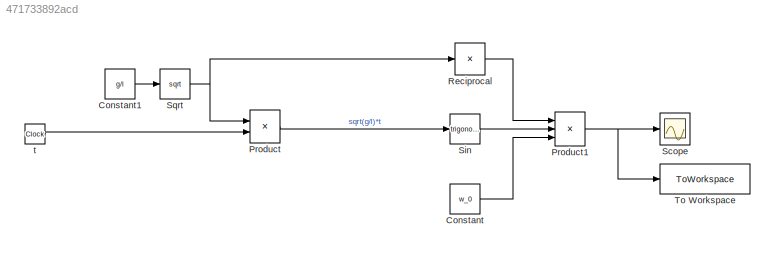
MODEL slx_471733892acd
KIND model
CONFIG AbsTol = auto
CONFIG EnableMultiTasking = off
CONFIG FixedStep = auto
CONFIG MaxStep = auto
CONFIG MinStep = auto
CONFIG RelTol = 1e-3
CONFIG SampleTimeConstraint = Unconstrained
CONFIG SolverName = VariableStepAuto
CONFIG StartTime = 0.0
CONFIG StopTime = 10.0
BLOCK [Constant] Constant
  Value = w_0
BLOCK [Constant] Constant1
  Value = g/l
BLOCK [Product] Product
BLOCK [Product] Product1
  Inputs = 3
BLOCK [Product] Reciprocal
  Inputs = /
  RndMeth = Zero
  SaturateOnIntegerOverflow = on
BLOCK [Scope] Scope
  Floating = off
  NumInputPorts = 1
  ScopeSpecificationString = Simulink.scopes.TimeScopeBlockCfg('CurrentConfiguration', extmgr.ConfigurationSet(extmgr.Configuration('Core','General UI',true),extmgr.Configuration('Core','Source UI',true),extmgr.Configuration('Sources','WiredSimulink',true),extmgr.Configuration('Visuals','Time Domain',true,'SerializedDisplays',{struct('MinYLimReal','-0.19531','MaxYLimReal','0.19494','YLabelReal','','MinYLimMag','0.00000','MaxY...<+1328ch>
BLOCK [Trigonometry] Sin
BLOCK [Sqrt] Sqrt
BLOCK [ToWorkspace] To Workspace
  FixptAsFi = on
  MaxDataPoints = inf
  SampleTime = -1
  SaveFormat = Timeseries
  VariableName = simout
BLOCK [Clock] t
LINE Constant1:1 -> Sqrt:1
LINE Constant:1 -> Product1:3
NET Product1:1 -> Scope:1, To Workspace:1
LINE Product:1 -> Sin:1
LINE Reciprocal:1 -> Product1:1
LINE Sin:1 -> Product1:2
NET Sqrt:1 -> Product:1, Reciprocal:1
LINE t:1 -> Product:2
note: NET lines group one-source signal fan-out (src -> all destinations, sorted); 1:1 wires keep LINE
